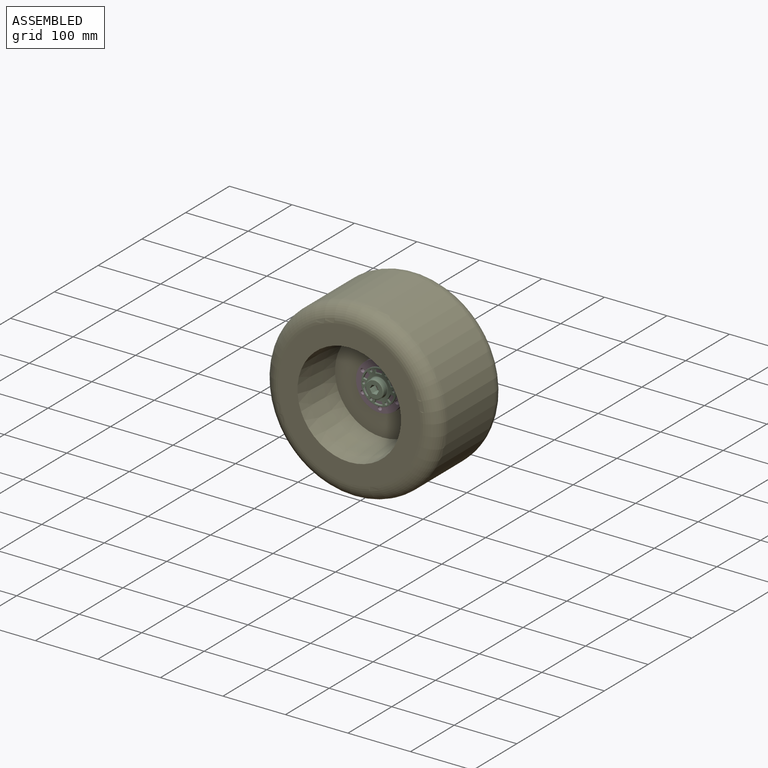
[diagram: assembled view]
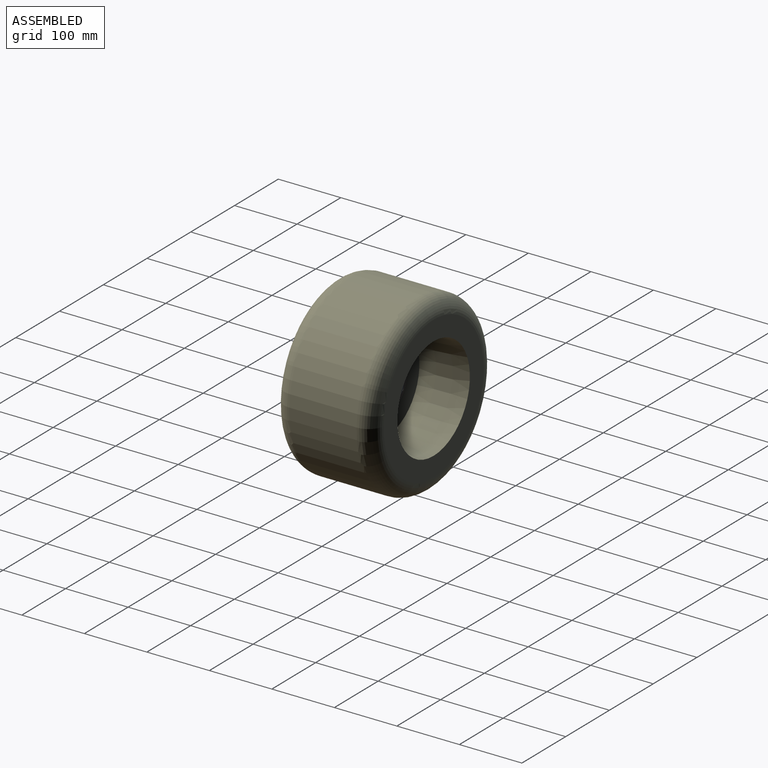
[diagram: assembled view, second angle]
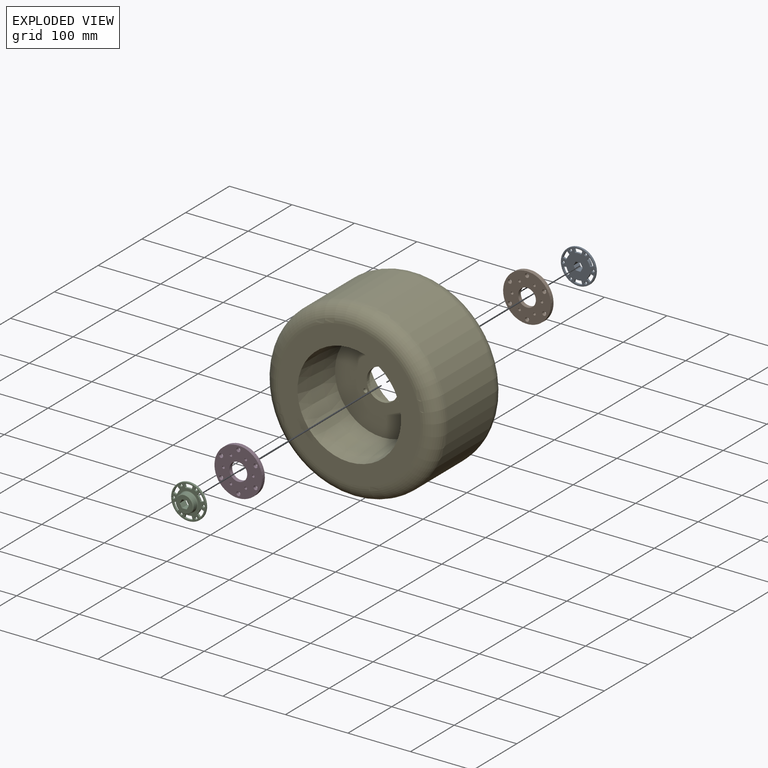
[diagram: exploded view]
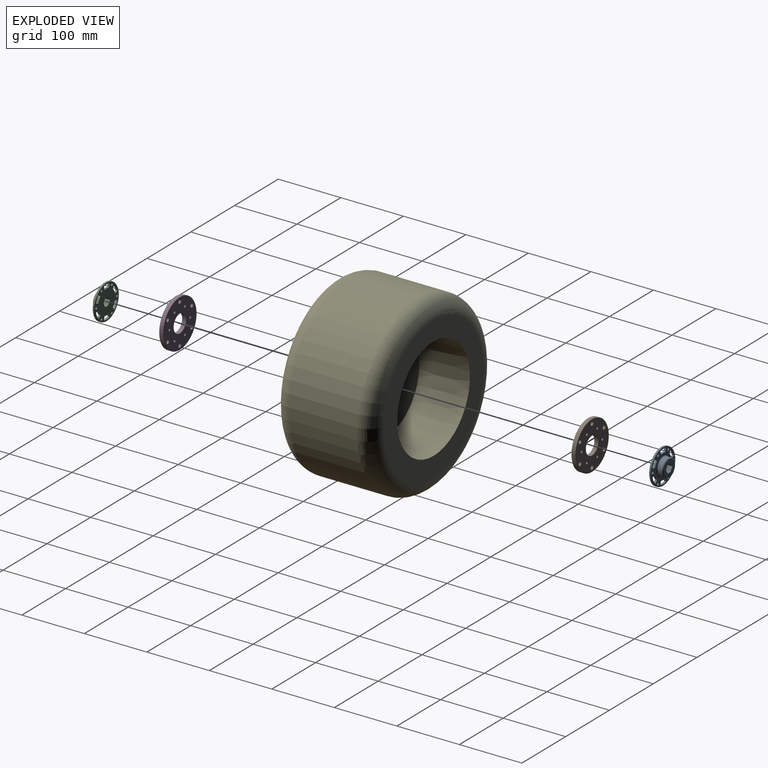
[diagram: exploded view, second angle]
ASSEMBLY  parts=5 mates=12
PART A: 69 faces, bbox 12.7x60.5x60.5 mm
  f0: torus R=27.44mm, axis (-1,0,0), area 137mm2, adj f2,f18
  f1: torus R=27.44mm, axis (1,0,0), area 137mm2, adj f2,f61
  f2: cylinder r=27.94mm len=55.88mm, axis (-1,0,0), area 381.8mm2, adj f0,f1
  f3: cone r=14.29mm half-angle=45deg, axis (1,0,0), area 122.6mm2, adj f5,f62
  f4: torus R=15.56mm, axis (-1,0,0), area 185mm2, adj f5,f18
  f5: cylinder r=14.29mm len=28.59mm, axis (1,0,0), area 651.6mm2, adj f3,f4
  f6: cylinder r=2.15mm len=4.3mm, axis (1,0,0), area 42.9mm2, adj f18,f61
  f7: cylinder r=2.15mm len=4.3mm, axis (1,0,0), area 42.9mm2, adj f18,f61
  f8: cylinder r=2.15mm len=4.3mm, axis (1,0,0), area 42.9mm2, adj f18,f61
  f9: cylinder r=2.15mm len=4.3mm, axis (1,0,0), area 42.9mm2, adj f18,f61
  f10: cylinder r=1mm len=3.18mm, axis (1,0,0), area 5.1mm2, adj f18,f58,f59,f61
  f11: cylinder r=1mm len=3.18mm, axis (1,0,0), area 5.1mm2, adj f18,f47,f53,f61
  f12: cylinder r=1mm len=3.18mm, axis (1,0,0), area 5.1mm2, adj f18,f40,f46,f61
  f13: cylinder r=2.15mm len=4.3mm, axis (1,0,0), area 42.9mm2, adj f18,f61
  f14: cylinder r=1mm len=3.18mm, axis (1,0,0), area 5.1mm2, adj f18,f37,f38,f61
  f15: cylinder r=1mm len=3.18mm, axis (1,0,0), area 4.8mm2, adj f18,f28,f29,f61
  f16: cylinder r=1mm len=3.18mm, axis (1,0,0), area 4.8mm2, adj f18,f19,f20,f61
  f17: cylinder r=2.15mm len=4.3mm, axis (1,0,0), area 42.9mm2, adj f18,f61
  f18: plane 54.88x54.88mm, normal (-1,0,0), area 1095.5mm2, adj f0,f4,f6,f7,f8,f9,f10,f11
  f19: plane 3.18x2.83mm, normal (0,-0.71,-0.71), area 12.7mm2, adj f16,f18,f25,f61
  f20: cylinder r=19.5mm len=7.2mm, axis (1,0,0), area 26.6mm2, adj f16,f18,f21,f61
  f21: cylinder r=1mm len=3.18mm, axis (1,0,0), area 4.8mm2, adj f18,f20,f22,f61
  f22: plane 3.87x3.18mm, normal (0,0.97,0.26), area 12.7mm2, adj f18,f21,f23,f61
  f23: cylinder r=1mm len=3.18mm, axis (1,0,0), area 5.1mm2, adj f18,f22,f24,f61
  f24: cylinder r=25.5mm len=9.75mm, axis (1,0,0), area 36mm2, adj f18,f23,f25,f61
  f25: cylinder r=1mm len=3.18mm, axis (1,0,0), area 5.1mm2, adj f18,f19,f24,f61
  f26: plane 3.87x3.18mm, normal (0,-0.97,0.26), area 12.7mm2, adj f18,f27,f32,f61
  f27: cylinder r=1mm len=3.18mm, axis (1,0,0), area 4.8mm2, adj f18,f26,f28,f61
  f28: cylinder r=19.5mm len=7.2mm, axis (1,0,0), area 26.6mm2, adj f15,f18,f27,f61
  f29: plane 3.18x2.83mm, normal (0,0.71,-0.71), area 12.7mm2, adj f15,f18,f30,f61
  f30: cylinder r=1mm len=3.18mm, axis (1,0,0), area 5.1mm2, adj f18,f29,f31,f61
  f31: cylinder r=25.5mm len=9.74mm, axis (1,0,0), area 36mm2, adj f18,f30,f32,f61
  f32: cylinder r=1mm len=3.18mm, axis (1,0,0), area 5.1mm2, adj f18,f26,f31,f61
  f33: plane 3.87x3.18mm, normal (0,-0.26,0.97), area 12.7mm2, adj f18,f34,f39,f61
  f34: cylinder r=1mm len=3.18mm, axis (1,0,0), area 4.8mm2, adj f18,f33,f35,f61
  f35: cylinder r=19.5mm len=8.32mm, axis (1,0,0), area 26.6mm2, adj f18,f34,f36,f61
  f36: cylinder r=1mm len=3.18mm, axis (1,0,0), area 4.8mm2, adj f18,f35,f37,f61
  f37: plane 3.87x3.18mm, normal (0,-0.26,-0.97), area 12.7mm2, adj f14,f18,f36,f61
  f38: cylinder r=25.5mm len=11.26mm, axis (1,0,0), area 36mm2, adj f14,f18,f39,f61
  f39: cylinder r=1mm len=3.18mm, axis (1,0,0), area 5.1mm2, adj f18,f33,f38,f61
  f40: plane 3.87x3.18mm, normal (0,0.26,-0.97), area 12.7mm2, adj f12,f18,f41,f61
  f41: cylinder r=1mm len=3.18mm, axis (1,0,0), area 4.8mm2, adj f18,f40,f42,f61
  f42: cylinder r=19.5mm len=8.32mm, axis (1,0,0), area 26.6mm2, adj f18,f41,f43,f61
  f43: cylinder r=1mm len=3.18mm, axis (1,0,0), area 4.8mm2, adj f18,f42,f44,f61
  f44: plane 3.87x3.18mm, normal (0,0.26,0.97), area 12.7mm2, adj f18,f43,f45,f61
  f45: cylinder r=1mm len=3.18mm, axis (1,0,0), area 5.1mm2, adj f18,f44,f46,f61
  f46: cylinder r=25.5mm len=11.26mm, axis (1,0,0), area 36mm2, adj f12,f18,f45,f61
  f47: plane 3.87x3.18mm, normal (0,0.97,-0.26), area 12.7mm2, adj f11,f18,f48,f61
  f48: cylinder r=1mm len=3.18mm, axis (1,0,0), area 4.8mm2, adj f18,f47,f49,f61
  f49: cylinder r=19.5mm len=7.2mm, axis (1,0,0), area 26.6mm2, adj f18,f48,f50,f61
  f50: cylinder r=1mm len=3.18mm, axis (1,0,0), area 4.8mm2, adj f18,f49,f51,f61
  f51: plane 3.18x2.83mm, normal (0,-0.71,0.71), area 12.7mm2, adj f18,f50,f52,f61
  f52: cylinder r=1mm len=3.18mm, axis (1,0,0), area 5.1mm2, adj f18,f51,f53,f61
  f53: cylinder r=25.5mm len=9.74mm, axis (1,0,0), area 36mm2, adj f11,f18,f52,f61
  f54: plane 3.18x2.83mm, normal (0,0.71,0.71), area 12.7mm2, adj f18,f55,f60,f61
  f55: cylinder r=1mm len=3.18mm, axis (1,0,0), area 4.8mm2, adj f18,f54,f56,f61
  f56: cylinder r=19.5mm len=7.2mm, axis (1,0,0), area 26.6mm2, adj f18,f55,f57,f61
  f57: cylinder r=1mm len=3.18mm, axis (1,0,0), area 4.8mm2, adj f18,f56,f58,f61
  f58: plane 3.87x3.18mm, normal (0,-0.97,-0.26), area 12.7mm2, adj f10,f18,f57,f61
  f59: cylinder r=25.5mm len=9.75mm, axis (1,0,0), area 36mm2, adj f10,f18,f60,f61
  f60: cylinder r=1mm len=3.18mm, axis (1,0,0), area 5.1mm2, adj f18,f54,f59,f61
  f61: plane 54.88x54.88mm, normal (1,0,0), area 1716.4mm2, adj f1,f6,f7,f8,f9,f10,f11,f12
  f62: plane 26.59x26.59mm, normal (-1,0,0), area 415.1mm2, adj f3,f63,f64,f65,f66,f67,f68
  f63: plane 12.7x7.35mm, normal (0,-1,0), area 93.3mm2, adj f61,f62,f64,f68
  f64: plane 12.7x6.36mm, normal (0,-0.5,0.87), area 93.3mm2, adj f61,f62,f63,f65
  f65: plane 12.7x6.36mm, normal (0,0.5,0.87), area 93.3mm2, adj f61,f62,f64,f66
  f66: plane 12.7x7.35mm, normal (0,1,0), area 93.3mm2, adj f61,f62,f65,f67
  f67: plane 12.7x6.36mm, normal (0,0.5,-0.87), area 93.3mm2, adj f61,f62,f66,f68
  f68: plane 12.7x6.36mm, normal (0,-0.5,-0.87), area 93.3mm2, adj f61,f62,f63,f67
PART B: 16 faces, bbox 76.2x6.4x76.2 mm
  f0: cylinder r=14.29mm len=28.58mm, axis (0,1,0), area 570mm2, adj f2,f3
  f1: cylinder r=38.1mm len=76.2mm, axis (0,1,0), area 1520.1mm2, adj f2,f3
  f2: plane 76.2x76.2mm, normal (0,-1,0), area 3651.2mm2, adj f0,f1,f4,f5,f6,f7,f8,f9
  f3: plane 76.2x76.2mm, normal (0,1,0), area 3651.2mm2, adj f0,f1,f4,f5,f6,f7,f8,f9
  f4: cylinder r=3.17mm len=6.35mm, axis (0,-1,0), area 126.7mm2, adj f2,f3
  f5: cylinder r=2.03mm len=6.35mm, axis (0,-1,0), area 81.1mm2, adj f2,f3
  f6: cylinder r=2.03mm len=6.35mm, axis (0,-1,0), area 81.1mm2, adj f2,f3
  f7: cylinder r=2.03mm len=6.35mm, axis (0,-1,0), area 81.1mm2, adj f2,f3
  f8: cylinder r=3.17mm len=6.35mm, axis (0,-1,0), area 126.7mm2, adj f2,f3
  f9: cylinder r=3.17mm len=6.35mm, axis (0,-1,0), area 126.7mm2, adj f2,f3
  f10: cylinder r=3.17mm len=6.35mm, axis (0,-1,0), area 126.7mm2, adj f2,f3
  f11: cylinder r=3.17mm len=6.35mm, axis (0,-1,0), area 126.7mm2, adj f2,f3
  f12: cylinder r=2.03mm len=6.35mm, axis (0,-1,0), area 81.1mm2, adj f2,f3
  f13: cylinder r=2.03mm len=6.35mm, axis (0,-1,0), area 81.1mm2, adj f2,f3
  f14: cylinder r=2.03mm len=6.35mm, axis (0,-1,0), area 81.1mm2, adj f2,f3
  f15: cylinder r=3.17mm len=6.35mm, axis (0,-1,0), area 126.7mm2, adj f2,f3
PART C: same geometry as A
PART D: same geometry as B
PART E: 13 faces, bbox 302.4x158.8x302.4 mm
  f0: cone r=76.2mm half-angle=5deg, axis (0,-1,0), area 38224.3mm2, adj f1,f6
  f1: plane 228.6x228.6mm, normal (0,-1,0), area 19470.4mm2, adj f0,f7
  f2: cylinder r=139.7mm len=279.4mm, axis (0,-1,0), area 94754.3mm2, adj f7,f8
  f3: plane 228.6x228.6mm, normal (0,1,0), area 19470.4mm2, adj f4,f8
  f4: cone r=76.2mm half-angle=5deg, axis (0,1,0), area 38224.3mm2, adj f3,f5
  f5: plane 152.4x152.4mm, normal (0,1,0), area 16119.6mm2, adj f4,f9,f10,f11,f12
  f6: plane 152.4x152.4mm, normal (0,-1,0), area 16119.6mm2, adj f0,f9,f10,f11,f12
  f7: torus R=114.3mm, axis (0,-1,0), area 32707.3mm2, adj f1,f2
  f8: torus R=114.3mm, axis (0,-1,0), area 32707.3mm2, adj f2,f3
  f9: cylinder r=25.4mm len=50.8mm, axis (0,-1,0), area 1013.4mm2, adj f5,f6
  f10: cylinder r=3.17mm len=6.35mm, axis (0,-1,0), area 126.7mm2, adj f5,f6
  f11: cylinder r=3.17mm len=6.35mm, axis (0,-1,0), area 126.7mm2, adj f5,f6
  f12: cylinder r=3.17mm len=6.35mm, axis (0,-1,0), area 126.7mm2, adj f5,f6
PLACE A rot(axis=(-0.58,0.58,-0.58),120deg) t=(-102.7,-20.33,15.58)mm
PLACE B rot(axis=(-0.5,0,-0.87),180deg) t=(-102.7,-39.38,15.58)mm
PLACE C rot(axis=(-0.58,-0.58,0.58),120deg) t=(-102.7,-64.78,15.58)mm
PLACE D t=(-102.7,-45.73,15.58)mm
PLACE E t=(-102.7,-42.55,15.58)mm
MATE cylindrical B.f11 <-> E.f11  axis (0,1,0) through (-130.19,-36.2,-0.29)mm
MATE cylindrical C.f9 <-> D.f14  axis (0,-1,0) through (-114.6,-55.25,36.2)mm
MATE cylindrical A.f6 <-> B.f14  axis (0,-1,0) through (-78.88,-31.44,15.58)mm
MATE planar B.f13 <-> E.f0  axis (0,-1,0) through (-90.79,-39.38,36.2)mm
MATE cylindrical B.f9 <-> E.f12  axis (0,1,0) through (-75.2,-36.2,-0.29)mm
MATE cylindrical D.f15 <-> E.f12  axis (0,-1,0) through (-75.2,-48.9,-0.29)mm
MATE planar A.f61 <-> B.f8  axis (0,-1,0) through (-84.11,-33.03,21.49)mm
MATE cylindrical C.f8 <-> D.f13  axis (0,1,0) through (-90.79,-55.25,36.2)mm
MATE cylindrical A.f13 <-> B.f6  axis (0,1,0) through (-90.79,-29.85,-5.04)mm
MATE planar C.f0 <-> D.f0  axis (0,1,0) through (-102.7,-52.08,15.58)mm
MATE planar D.f0 <-> E.f0  axis (0,1,0) through (-102.7,-45.73,15.58)mm
MATE cylindrical D.f8 <-> E.f10  axis (0,-1,0) through (-102.7,-48.9,47.33)mm
